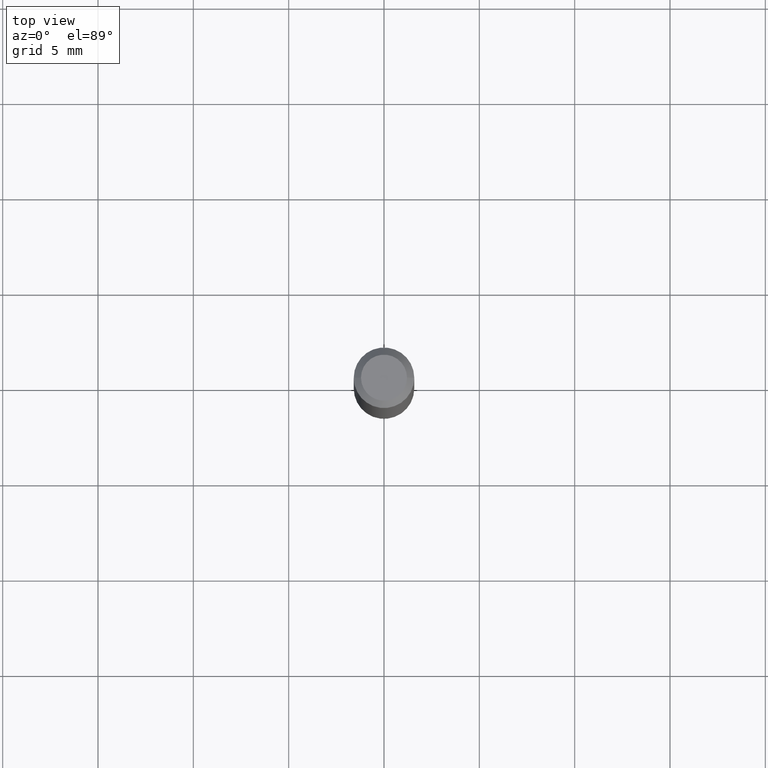
[diagram: clean part render]
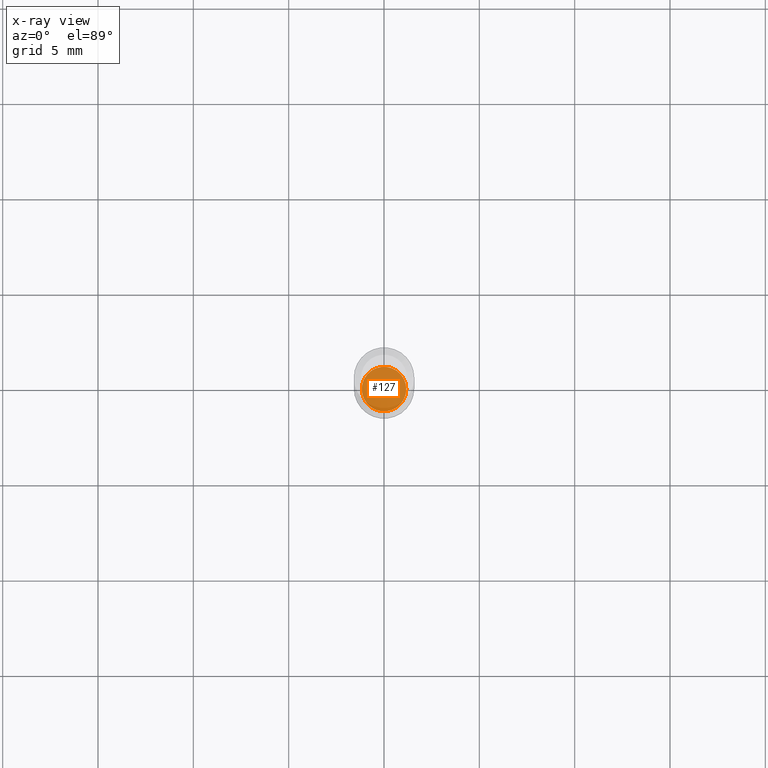
[diagram: x-ray — body ghosted, one internal face saturated and labeled with its STEP entity id]
A machine part, top view, then the same camera in x-ray: the body is ghosted and one INTERNAL B-rep face — a face not visible from any outside direction — is saturated and labeled: STEP entity #127.
In plain terms, the highlighted planar face has unit normal (-0, 0, 1).
Its self-contained STEP definition (entity closure, byte-faithful):
#3 = DIRECTION ( 'NONE',  ( -2.445468806185136597E-29, 3.491481338843145583E-15, 1.000000000000000000 ) ) ;
#5 = CARTESIAN_POINT ( 'NONE',  ( 3.325837576411786624E-29, -4.748414620826679034E-15, -1.360000000000000320 ) ) ;
#51 = EDGE_CURVE ( 'NONE', #59, #167, #103, .T. ) ;
#59 = VERTEX_POINT ( 'NONE', #398 ) ;
#64 = PLANE ( 'NONE',  #345 ) ;
#103 = CIRCLE ( 'NONE', #384, 0.04599999999999999922 ) ;
#127 = ADVANCED_FACE ( 'NONE', ( #389 ), #64, .F. ) ;
#133 = DIRECTION ( 'NONE',  ( -2.438088387897960049E-29, 3.491481338843145188E-15, 1.000000000000000000 ) ) ;
#152 = DIRECTION ( 'NONE',  ( 1.000000000000000000, -6.982962677686269866E-15, 0.000000000000000000 ) ) ;
#167 = VERTEX_POINT ( 'NONE', #314 ) ;
#194 = CIRCLE ( 'NONE', #266, 0.04599999999999999922 ) ;
#217 = ORIENTED_EDGE ( 'NONE', *, *, #51, .F. ) ;
#266 = AXIS2_PLACEMENT_3D ( 'NONE', #5, #3, #152 ) ;
#276 = DIRECTION ( 'NONE',  ( 1.000000000000000000, -6.982962677686265922E-15, 4.876176775795935793E-29 ) ) ;
#296 = DIRECTION ( 'NONE',  ( -2.445468806185136597E-29, 3.491481338843145583E-15, 1.000000000000000000 ) ) ;
#314 = CARTESIAN_POINT ( 'NONE',  ( 0.04599999999999999922, -5.069630904000247523E-15, -1.360000000000000320 ) ) ;
#345 = AXIS2_PLACEMENT_3D ( 'NONE', #355, #133, #276 ) ;
#347 = EDGE_LOOP ( 'NONE', ( #463, #217 ) ) ;
#355 = CARTESIAN_POINT ( 'NONE',  ( 3.325837576411786624E-29, -4.748414620826679034E-15, -1.360000000000000320 ) ) ;
#384 = AXIS2_PLACEMENT_3D ( 'NONE', #462, #296, #402 ) ;
#389 = FACE_OUTER_BOUND ( 'NONE', #347, .T. ) ;
#398 = CARTESIAN_POINT ( 'NONE',  ( -0.04599999999999999922, -4.418915735202923035E-15, -1.360000000000000320 ) ) ;
#402 = DIRECTION ( 'NONE',  ( 1.000000000000000000, -6.982962677686269866E-15, 0.000000000000000000 ) ) ;
#454 = EDGE_CURVE ( 'NONE', #167, #59, #194, .T. ) ;
#462 = CARTESIAN_POINT ( 'NONE',  ( 3.325837576411786624E-29, -4.748414620826679034E-15, -1.360000000000000320 ) ) ;
#463 = ORIENTED_EDGE ( 'NONE', *, *, #454, .F. ) ;